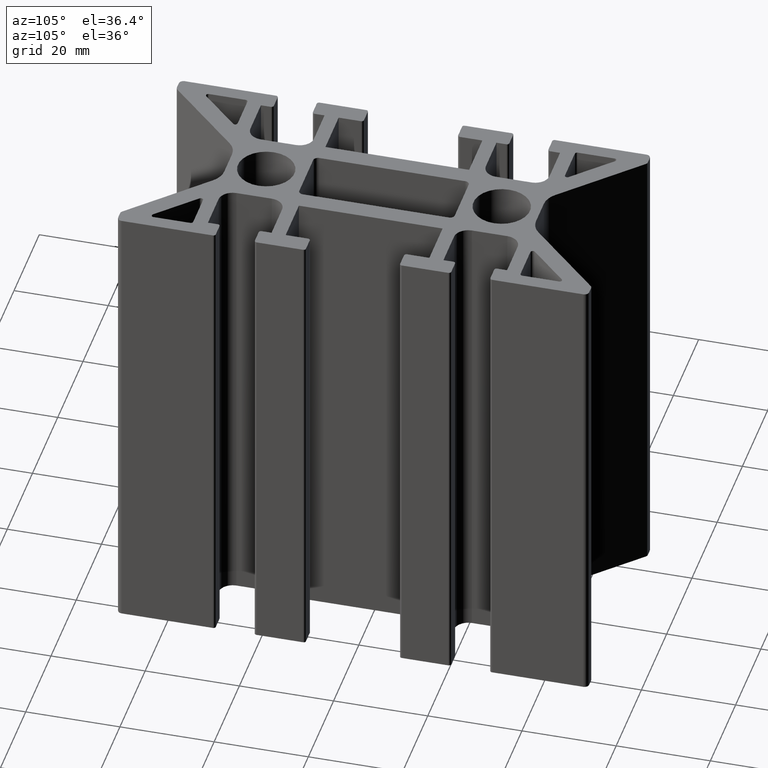
[diagram: clean part render]
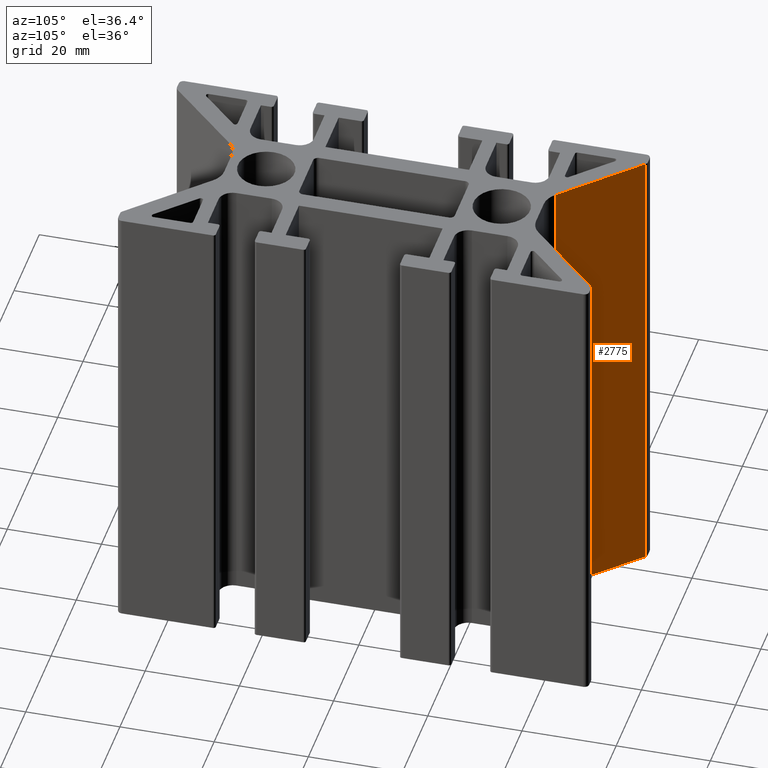
[diagram: same view with one face highlighted and labeled with its STEP entity id]
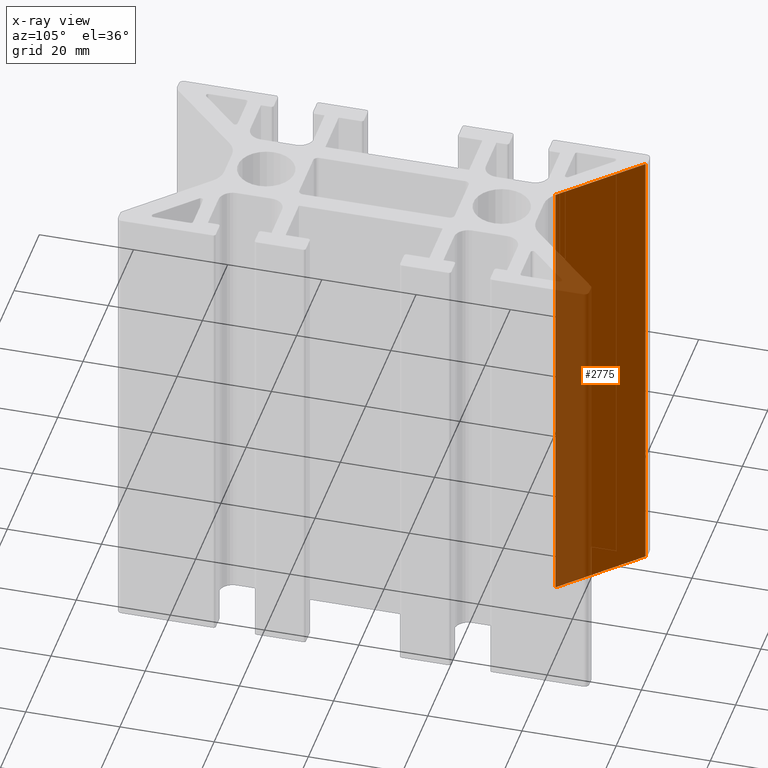
[diagram: x-ray of the same camera — body ghosted, the highlighted face saturated]
A machine part, auxiliary view. The second image highlights one B-rep face of the part: STEP entity #2775.
The next image is the same camera in x-ray: the body ghosted, the highlighted face saturated — about 32% of this face is hidden behind the body in this view.
In plain terms, the highlighted planar face has unit normal (0.7071, 0.7071, 0).
Its self-contained STEP definition (entity closure, byte-faithful):
#77=PLANE('',#3042);
#197=FACE_OUTER_BOUND('',#344,.T.);
#344=EDGE_LOOP('',(#2289,#2290,#2291,#2292));
#623=LINE('',#4252,#913);
#737=LINE('',#4567,#1027);
#738=LINE('',#4570,#1028);
#739=LINE('',#4571,#1029);
#913=VECTOR('',#3402,10.);
#1027=VECTOR('',#3714,10.);
#1028=VECTOR('',#3717,10.);
#1029=VECTOR('',#3718,10.);
#1229=VERTEX_POINT('',#4249);
#1230=VERTEX_POINT('',#4251);
#1332=VERTEX_POINT('',#4565);
#1333=VERTEX_POINT('',#4569);
#1539=EDGE_CURVE('',#1229,#1230,#623,.T.);
#1697=EDGE_CURVE('',#1229,#1332,#737,.T.);
#1698=EDGE_CURVE('',#1333,#1332,#738,.T.);
#1699=EDGE_CURVE('',#1230,#1333,#739,.T.);
#2289=ORIENTED_EDGE('',*,*,#1697,.T.);
#2290=ORIENTED_EDGE('',*,*,#1698,.F.);
#2291=ORIENTED_EDGE('',*,*,#1699,.F.);
#2292=ORIENTED_EDGE('',*,*,#1539,.F.);
#2775=ADVANCED_FACE('',(#197),#77,.T.);
#3042=AXIS2_PLACEMENT_3D('',#4568,#3715,#3716);
#3402=DIRECTION('',(0.707106781186467,-0.707106781186628,0.));
#3714=DIRECTION('',(0.,0.,1.));
#3715=DIRECTION('center_axis',(0.707106781186628,0.707106781186467,0.));
#3716=DIRECTION('ref_axis',(-0.707106781186467,0.707106781186628,0.));
#3717=DIRECTION('',(-0.707106781186467,0.707106781186628,0.));
#3718=DIRECTION('',(0.,0.,1.));
#4249=CARTESIAN_POINT('',(-21.75143085624,49.6616216372607,-50.));
#4251=CARTESIAN_POINT('',(-6.65427531310725,34.5644660941245,-50.));
#4252=CARTESIAN_POINT('',(-6.65427531310725,34.5644660941245,-50.));
#4565=CARTESIAN_POINT('',(-21.75143085624,49.6616216372607,50.));
#4567=CARTESIAN_POINT('',(-21.75143085624,49.6616216372607,0.));
#4568=CARTESIAN_POINT('Origin',(-6.65427531310725,34.5644660941245,0.));
#4569=CARTESIAN_POINT('',(-6.65427531310725,34.5644660941245,50.));
#4570=CARTESIAN_POINT('',(-6.65427531310725,34.5644660941245,50.));
#4571=CARTESIAN_POINT('',(-6.65427531310725,34.5644660941245,0.));